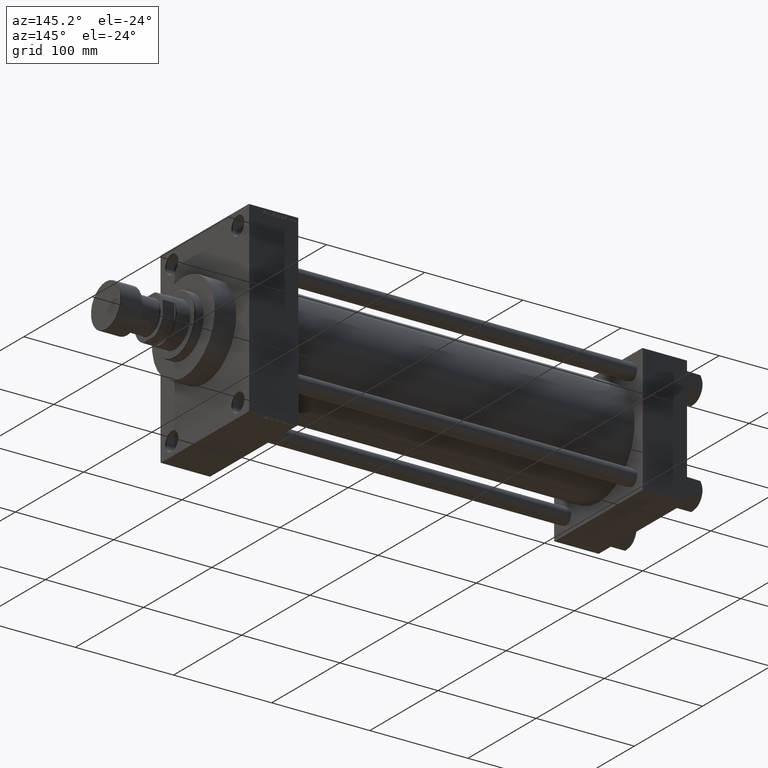
[diagram: clean part render]
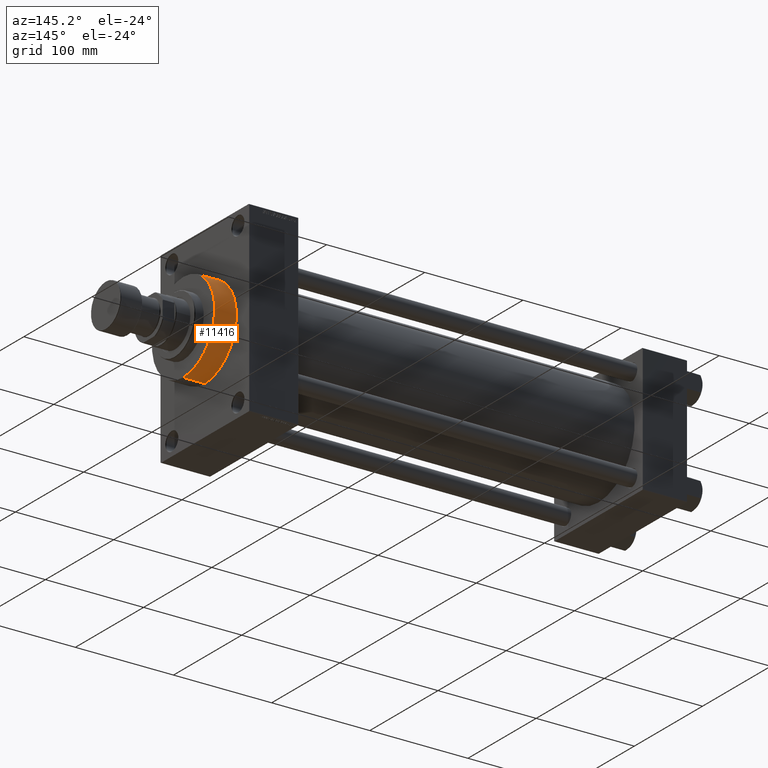
[diagram: same view with one face highlighted and labeled with its STEP entity id]
A machine part, auxiliary view. The second image highlights one B-rep face of the part: STEP entity #11416.
In plain terms, the highlighted cylindrical surface (partial cylindrical patch) has radius 46 mm, axis along (-1, -0, -0).
Its self-contained STEP definition (entity closure, byte-faithful):
#1011 = ORIENTED_EDGE ( 'NONE', *, *, #42150, .F. ) ;
#1650 = AXIS2_PLACEMENT_3D ( 'NONE', #44119, #44354, #11509 ) ;
#2277 = DIRECTION ( 'NONE',  ( -1.000000000000000000, -0.000000000000000000, -0.000000000000000000 ) ) ;
#3385 = ORIENTED_EDGE ( 'NONE', *, *, #6078, .F. ) ;
#3623 = CIRCLE ( 'NONE', #5929, 46.00000000000000000 ) ;
#4095 = CARTESIAN_POINT ( 'NONE',  ( 445.9999999999999432, 0.000000000000000000, 0.000000000000000000 ) ) ;
#5294 = CARTESIAN_POINT ( 'NONE',  ( 468.0000000000000000, 0.000000000000000000, 46.00000000000000000 ) ) ;
#5929 = AXIS2_PLACEMENT_3D ( 'NONE', #4095, #33774, #41081 ) ;
#6078 = EDGE_CURVE ( 'NONE', #29116, #36677, #13313, .T. ) ;
#6399 = DIRECTION ( 'NONE',  ( 0.000000000000000000, 0.000000000000000000, 1.000000000000000000 ) ) ;
#6818 = VERTEX_POINT ( 'NONE', #15932 ) ;
#7546 = FACE_OUTER_BOUND ( 'NONE', #41546, .T. ) ;
#8176 = LINE ( 'NONE', #22328, #22185 ) ;
#11416 = ADVANCED_FACE ( 'NONE', ( #7546 ), #28300, .T. ) ;
#11509 = DIRECTION ( 'NONE',  ( 0.000000000000000000, 0.000000000000000000, -1.000000000000000000 ) ) ;
#11854 = CARTESIAN_POINT ( 'NONE',  ( 468.0000000000000000, 5.633375276077824704E-15, -46.00000000000000000 ) ) ;
#13313 = CIRCLE ( 'NONE', #1650, 46.00000000000000000 ) ;
#15932 = CARTESIAN_POINT ( 'NONE',  ( 445.9999999999999432, 5.633375276077824704E-15, -46.00000000000000000 ) ) ;
#19380 = DIRECTION ( 'NONE',  ( -1.000000000000000000, -0.000000000000000000, -0.000000000000000000 ) ) ;
#20458 = AXIS2_PLACEMENT_3D ( 'NONE', #37226, #2277, #6399 ) ;
#22185 = VECTOR ( 'NONE', #19380, 1000.000000000000000 ) ;
#22328 = CARTESIAN_POINT ( 'NONE',  ( 468.0000000000000000, 5.633375276077824704E-15, -46.00000000000000000 ) ) ;
#25397 = VECTOR ( 'NONE', #34722, 1000.000000000000000 ) ;
#28300 = CYLINDRICAL_SURFACE ( 'NONE', #20458, 46.00000000000000000 ) ;
#29116 = VERTEX_POINT ( 'NONE', #11854 ) ;
#30692 = ORIENTED_EDGE ( 'NONE', *, *, #39224, .T. ) ;
#33774 = DIRECTION ( 'NONE',  ( 1.000000000000000000, 0.000000000000000000, 0.000000000000000000 ) ) ;
#34722 = DIRECTION ( 'NONE',  ( -1.000000000000000000, -0.000000000000000000, -0.000000000000000000 ) ) ;
#35767 = CARTESIAN_POINT ( 'NONE',  ( 468.0000000000000000, 0.000000000000000000, 46.00000000000000000 ) ) ;
#36571 = VERTEX_POINT ( 'NONE', #37285 ) ;
#36677 = VERTEX_POINT ( 'NONE', #35767 ) ;
#37226 = CARTESIAN_POINT ( 'NONE',  ( 468.0000000000000000, 0.000000000000000000, 0.000000000000000000 ) ) ;
#37285 = CARTESIAN_POINT ( 'NONE',  ( 445.9999999999999432, 0.000000000000000000, 46.00000000000000000 ) ) ;
#39224 = EDGE_CURVE ( 'NONE', #29116, #6818, #8176, .T. ) ;
#41081 = DIRECTION ( 'NONE',  ( 0.000000000000000000, 0.000000000000000000, -1.000000000000000000 ) ) ;
#41546 = EDGE_LOOP ( 'NONE', ( #3385, #30692, #44351, #1011 ) ) ;
#42049 = EDGE_CURVE ( 'NONE', #6818, #36571, #3623, .T. ) ;
#42150 = EDGE_CURVE ( 'NONE', #36677, #36571, #45687, .T. ) ;
#44119 = CARTESIAN_POINT ( 'NONE',  ( 468.0000000000000000, 0.000000000000000000, 0.000000000000000000 ) ) ;
#44351 = ORIENTED_EDGE ( 'NONE', *, *, #42049, .T. ) ;
#44354 = DIRECTION ( 'NONE',  ( 1.000000000000000000, 0.000000000000000000, 0.000000000000000000 ) ) ;
#45687 = LINE ( 'NONE', #5294, #25397 ) ;